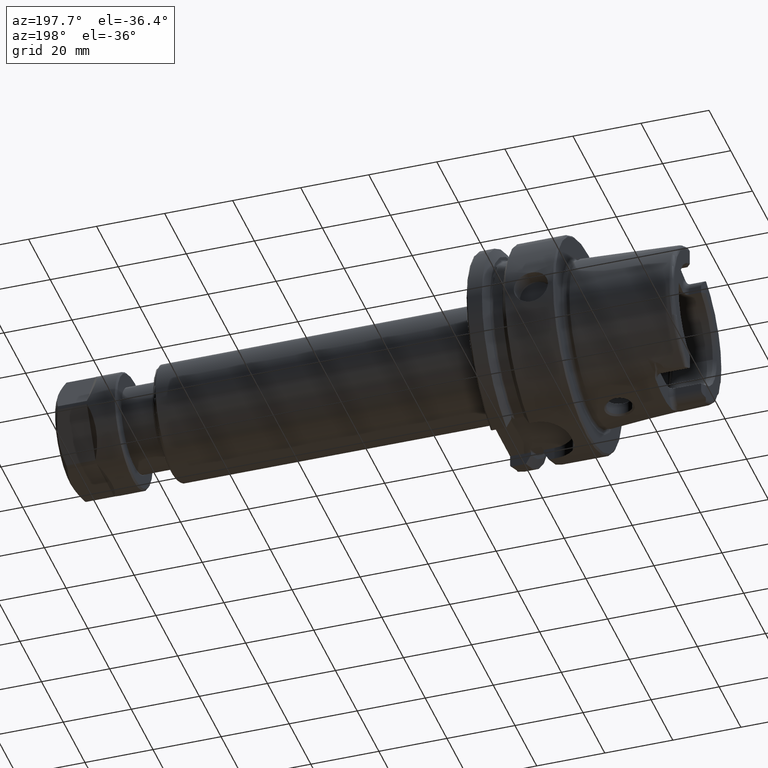
[diagram: clean part render]
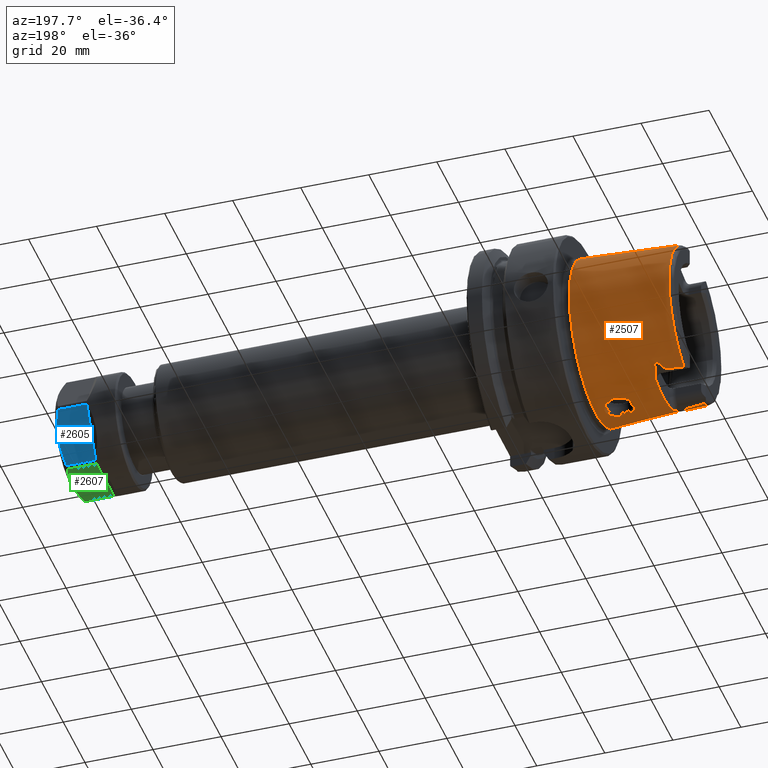
[diagram: same view with three faces highlighted in distinct colors, each labeled with its STEP entity id]
A machine part, auxiliary view with three faces highlighted in distinct colors.
Their STEP definitions:

[orange] entity #2507 — the highlighted conical surface has half-angle 2.868 deg.
#61=(
BOUNDED_CURVE()
B_SPLINE_CURVE(2,(#4235,#4236,#4237),.UNSPECIFIED.,.F.,.F.)
B_SPLINE_CURVE_WITH_KNOTS((3,3),(0.409626932432081,0.704053423593105),
 .UNSPECIFIED.)
CURVE()
GEOMETRIC_REPRESENTATION_ITEM()
RATIONAL_B_SPLINE_CURVE((1.00336468859939,1.00336468859939,1.00162640098087))
REPRESENTATION_ITEM('')
);
#62=(
BOUNDED_CURVE()
B_SPLINE_CURVE(2,(#4302,#4303,#4304),.UNSPECIFIED.,.F.,.F.)
B_SPLINE_CURVE_WITH_KNOTS((3,3),(0.115200441271059,0.409626932432082),
 .UNSPECIFIED.)
CURVE()
GEOMETRIC_REPRESENTATION_ITEM()
RATIONAL_B_SPLINE_CURVE((1.00162640098087,1.00336468859939,1.00336468859939))
REPRESENTATION_ITEM('')
);
#84=B_SPLINE_CURVE_WITH_KNOTS('',3,(#3921,#3922,#3923,#3924,#3925,#3926,
#3927,#3928,#3929,#3930,#3931,#3932,#3933,#3934,#3935,#3936,#3937,#3938),
 .UNSPECIFIED.,.F.,.F.,(4,2,2,2,2,2,2,2,4),(0.937345209538582,1.02529838322405,
1.19618144709472,1.36706451096539,1.42680307053412,1.48654163010284,1.50096970945234,
1.50818374912708,1.51539778880183),.UNSPECIFIED.);
#87=B_SPLINE_CURVE_WITH_KNOTS('',3,(#3989,#3990,#3991,#3992,#3993,#3994,
#3995,#3996,#3997,#3998,#3999,#4000,#4001,#4002,#4003,#4004,#4005,#4006),
 .UNSPECIFIED.,.F.,.F.,(4,2,2,2,2,2,2,2,4),(1.51539778880184,1.52261182847659,
1.52982586815134,1.54425394750083,1.60399250706955,1.66373106663827,1.83461413050895,
2.00549719437962,2.0934503680651),.UNSPECIFIED.);
#89=B_SPLINE_CURVE_WITH_KNOTS('',3,(#4044,#4045,#4046,#4047,#4048,#4049,
#4050,#4051),.UNSPECIFIED.,.F.,.F.,(4,2,2,4),(1.77153596711132,1.83492838643131,
2.00584149209106,2.09371558288111),.UNSPECIFIED.);
#90=B_SPLINE_CURVE_WITH_KNOTS('',3,(#4068,#4069,#4070,#4071,#4072,#4073,
#4074,#4075),.UNSPECIFIED.,.F.,.F.,(4,2,2,4),(0.937604543168422,1.02547863395848,
1.19639173961822,1.25978415893822),.UNSPECIFIED.);
#94=B_SPLINE_CURVE_WITH_KNOTS('',3,(#4207,#4208,#4209,#4210,#4211,#4212,
#4213,#4214,#4215,#4216,#4217,#4218,#4219,#4220,#4221,#4222,#4223,#4224,
#4225,#4226,#4227),.UNSPECIFIED.,.T.,.F.,(4,1,1,1,1,1,1,1,1,1,1,1,1,1,1,
1,1,1,4),(-2.26557970640445,-2.10375258451842,-1.94192546263239,-1.86101190168937,
-1.78009834074636,-1.61827121886032,-1.45644409697429,-1.37553053603127,
-1.29461697508826,-1.18673222716424,-1.07884747924022,-0.970962731316194,
-0.863077983392173,-0.755193235468151,-0.647308487544129,-0.485481365658097,
-0.323654243772065,-0.161827121886032,0.),.UNSPECIFIED.);
#95=B_SPLINE_CURVE_WITH_KNOTS('',3,(#4239,#4240,#4241,#4242,#4243,#4244,
#4245,#4246,#4247,#4248,#4249,#4250,#4251,#4252,#4253,#4254,#4255,#4256),
 .UNSPECIFIED.,.F.,.F.,(4,2,2,2,2,2,2,2,4),(0.,0.0903555875079969,0.135533381261995,
0.180711175015994,0.191679253692351,0.19716329303053,0.202647332368709,
0.208141673454593,0.210684760739668),.UNSPECIFIED.);
#96=B_SPLINE_CURVE_WITH_KNOTS('',3,(#4258,#4259,#4260,#4261,#4262,#4263,
#4264,#4265,#4266,#4267),.UNSPECIFIED.,.F.,.F.,(4,2,2,2,4),(0.278659319230644,
0.333918541832918,0.442805459609059,0.482035165304725,0.500954004489182),
 .UNSPECIFIED.);
#97=B_SPLINE_CURVE_WITH_KNOTS('',3,(#4271,#4272,#4273,#4274,#4275,#4276,
#4277,#4278,#4279,#4280,#4281,#4282),.UNSPECIFIED.,.F.,.F.,(4,2,2,2,2,4),
(0.500954004487676,0.50386398744684,0.528331134037123,0.580812359186529,
0.712749669755937,0.726249722962502),.UNSPECIFIED.);
#98=B_SPLINE_CURVE_WITH_KNOTS('',3,(#4284,#4285,#4286,#4287,#4288,#4289,
#4290,#4291,#4292,#4293,#4294,#4295,#4296,#4297,#4298,#4299,#4300,#4301),
 .UNSPECIFIED.,.F.,.F.,(4,2,2,2,2,2,2,2,4),(0.599581967500703,0.602125054785784,
0.607619395871668,0.613103435209847,0.618587474548027,0.629555553224386,
0.674733346978385,0.719911140732385,0.810266728240384),.UNSPECIFIED.);
#99=B_SPLINE_CURVE_WITH_KNOTS('',3,(#4307,#4308,#4309,#4310,#4311,#4312,
#4313,#4314,#4315,#4316,#4317,#4318,#4319,#4320),.UNSPECIFIED.,.F.,.F.,
(4,2,2,2,2,2,4),(0.612787130114313,0.692070205833102,0.846913877835571,
0.923866042650838,0.97973233720279,1.02631946127952,1.05465853457734),
 .UNSPECIFIED.);
#100=B_SPLINE_CURVE_WITH_KNOTS('',3,(#4323,#4324,#4325,#4326,#4327,#4328,
#4329,#4330,#4331,#4332,#4333,#4334,#4335,#4336),.UNSPECIFIED.,.F.,.F.,
(4,2,2,2,2,2,4),(0.413162960284885,0.443293122422243,0.485069563612126,
0.532728756474865,0.604908335246701,0.737193690325506,0.813919818316776),
 .UNSPECIFIED.);
#101=B_SPLINE_CURVE_WITH_KNOTS('',3,(#4339,#4340,#4341,#4342,#4343,#4344,
#4345,#4346,#4347,#4348,#4349,#4350,#4351,#4352,#4353,#4354,#4355,#4356,
#4357,#4358,#4359),.UNSPECIFIED.,.T.,.F.,(4,1,1,1,1,1,1,1,1,1,1,1,1,1,1,
1,1,1,4),(-2.26557970640445,-2.10375258451842,-1.94192546263239,-1.78009834074636,
-1.61827121886032,-1.45644409697429,-1.37553053603127,-1.29461697508826,
-1.18673222716424,-1.07884747924022,-1.0249051052782,-0.970962731316194,
-0.755193235468151,-0.647308487544129,-0.485481365658097,-0.404567804715081,
-0.323654243772065,-0.161827121886032,0.),.UNSPECIFIED.);
#186=FACE_BOUND('',#464,.T.);
#187=FACE_BOUND('',#465,.T.);
#265=CONICAL_SURFACE('',#2775,23.4974838444284,0.0500583457465973);
#310=FACE_OUTER_BOUND('',#463,.T.);
#463=EDGE_LOOP('',(#1806,#1807,#1808,#1809,#1810,#1811,#1812,#1813,#1814,
#1815,#1816,#1817,#1818,#1819,#1820,#1821,#1822,#1823,#1824,#1825));
#464=EDGE_LOOP('',(#1826));
#465=EDGE_LOOP('',(#1827));
#637=LINE('',#4232,#773);
#773=VECTOR('',#3218,23.4974838444284);
#906=CIRCLE('',#2776,24.2204308617234);
#907=CIRCLE('',#2777,22.7745368271334);
#908=CIRCLE('',#2778,23.2184268537074);
#909=CIRCLE('',#2779,22.7745368271334);
#910=CIRCLE('',#2780,23.0180260521042);
#911=CIRCLE('',#2781,22.7745368271334);
#1065=VERTEX_POINT('',#3918);
#1066=VERTEX_POINT('',#3920);
#1076=VERTEX_POINT('',#3975);
#1077=VERTEX_POINT('',#3988);
#1087=VERTEX_POINT('',#4030);
#1088=VERTEX_POINT('',#4043);
#1094=VERTEX_POINT('',#4065);
#1095=VERTEX_POINT('',#4067);
#1098=VERTEX_POINT('',#4178);
#1101=VERTEX_POINT('',#4229);
#1102=VERTEX_POINT('',#4231);
#1103=VERTEX_POINT('',#4234);
#1104=VERTEX_POINT('',#4238);
#1105=VERTEX_POINT('',#4257);
#1106=VERTEX_POINT('',#4268);
#1107=VERTEX_POINT('',#4270);
#1108=VERTEX_POINT('',#4283);
#1109=VERTEX_POINT('',#4306);
#1110=VERTEX_POINT('',#4321);
#1111=VERTEX_POINT('',#4338);
#1330=EDGE_CURVE('',#1066,#1065,#84,.T.);
#1344=EDGE_CURVE('',#1077,#1076,#87,.T.);
#1357=EDGE_CURVE('',#1088,#1087,#89,.T.);
#1365=EDGE_CURVE('',#1095,#1094,#90,.T.);
#1373=EDGE_CURVE('',#1098,#1098,#94,.T.);
#1374=EDGE_CURVE('',#1101,#1101,#906,.T.);
#1375=EDGE_CURVE('',#1101,#1102,#637,.T.);
#1376=EDGE_CURVE('',#1102,#1066,#907,.T.);
#1377=EDGE_CURVE('',#1065,#1103,#61,.T.);
#1378=EDGE_CURVE('',#1104,#1103,#95,.T.);
#1379=EDGE_CURVE('',#1105,#1104,#96,.T.);
#1380=EDGE_CURVE('',#1105,#1106,#908,.T.);
#1381=EDGE_CURVE('',#1107,#1106,#97,.T.);
#1382=EDGE_CURVE('',#1108,#1107,#98,.T.);
#1383=EDGE_CURVE('',#1108,#1077,#62,.T.);
#1384=EDGE_CURVE('',#1076,#1095,#909,.T.);
#1385=EDGE_CURVE('',#1109,#1094,#99,.T.);
#1386=EDGE_CURVE('',#1109,#1110,#910,.T.);
#1387=EDGE_CURVE('',#1088,#1110,#100,.T.);
#1388=EDGE_CURVE('',#1087,#1102,#911,.T.);
#1389=EDGE_CURVE('',#1111,#1111,#101,.T.);
#1806=ORIENTED_EDGE('',*,*,#1374,.F.);
#1807=ORIENTED_EDGE('',*,*,#1375,.T.);
#1808=ORIENTED_EDGE('',*,*,#1376,.T.);
#1809=ORIENTED_EDGE('',*,*,#1330,.T.);
#1810=ORIENTED_EDGE('',*,*,#1377,.T.);
#1811=ORIENTED_EDGE('',*,*,#1378,.F.);
#1812=ORIENTED_EDGE('',*,*,#1379,.F.);
#1813=ORIENTED_EDGE('',*,*,#1380,.T.);
#1814=ORIENTED_EDGE('',*,*,#1381,.F.);
#1815=ORIENTED_EDGE('',*,*,#1382,.F.);
#1816=ORIENTED_EDGE('',*,*,#1383,.T.);
#1817=ORIENTED_EDGE('',*,*,#1344,.T.);
#1818=ORIENTED_EDGE('',*,*,#1384,.T.);
#1819=ORIENTED_EDGE('',*,*,#1365,.T.);
#1820=ORIENTED_EDGE('',*,*,#1385,.F.);
#1821=ORIENTED_EDGE('',*,*,#1386,.T.);
#1822=ORIENTED_EDGE('',*,*,#1387,.F.);
#1823=ORIENTED_EDGE('',*,*,#1357,.T.);
#1824=ORIENTED_EDGE('',*,*,#1388,.T.);
#1825=ORIENTED_EDGE('',*,*,#1375,.F.);
#1826=ORIENTED_EDGE('',*,*,#1389,.F.);
#1827=ORIENTED_EDGE('',*,*,#1373,.F.);
#2507=ADVANCED_FACE('',(#310,#186,#187),#265,.T.);
#2775=AXIS2_PLACEMENT_3D('',#4228,#3214,#3215);
#2776=AXIS2_PLACEMENT_3D('',#4230,#3216,#3217);
#2777=AXIS2_PLACEMENT_3D('',#4233,#3219,#3220);
#2778=AXIS2_PLACEMENT_3D('',#4269,#3221,#3222);
#2779=AXIS2_PLACEMENT_3D('',#4305,#3223,#3224);
#2780=AXIS2_PLACEMENT_3D('',#4322,#3225,#3226);
#2781=AXIS2_PLACEMENT_3D('',#4337,#3227,#3228);
#3214=DIRECTION('center_axis',(1.,0.,0.));
#3215=DIRECTION('ref_axis',(0.,1.,0.));
#3216=DIRECTION('center_axis',(1.,0.,0.));
#3217=DIRECTION('ref_axis',(0.,0.,-1.));
#3218=DIRECTION('',(-0.998747342623037,0.0500374420151821,6.1278193201414E-18));
#3219=DIRECTION('center_axis',(1.,0.,0.));
#3220=DIRECTION('ref_axis',(0.,0.,-1.));
#3221=DIRECTION('center_axis',(1.,0.,0.));
#3222=DIRECTION('ref_axis',(0.,1.,0.));
#3223=DIRECTION('center_axis',(1.,0.,0.));
#3224=DIRECTION('ref_axis',(0.,0.,-1.));
#3225=DIRECTION('center_axis',(1.,0.,0.));
#3226=DIRECTION('ref_axis',(0.,1.,0.));
#3227=DIRECTION('center_axis',(1.,0.,0.));
#3228=DIRECTION('ref_axis',(0.,0.,-1.));
#3918=CARTESIAN_POINT('',(-25.0978148584663,-10.4556386714692,-20.5570425901345));
#3920=CARTESIAN_POINT('',(-30.8600449304182,-9.1175788960984,-20.8698175067219));
#3921=CARTESIAN_POINT('Ctrl Pts',(-30.8600449304182,-9.11757889609839,-20.8698175067219));
#3922=CARTESIAN_POINT('Ctrl Pts',(-30.5458909643235,-9.15590567779842,-20.8702489912062));
#3923=CARTESIAN_POINT('Ctrl Pts',(-30.2333885582947,-9.19553638844306,-20.8699331931734));
#3924=CARTESIAN_POINT('Ctrl Pts',(-29.3200764392134,-9.31683719872071,-20.8662835753638));
#3925=CARTESIAN_POINT('Ctrl Pts',(-28.7253632733503,-9.40260250516231,-20.8605355436413));
#3926=CARTESIAN_POINT('Ctrl Pts',(-27.5600080230793,-9.59491882494623,-20.8370744460606));
#3927=CARTESIAN_POINT('Ctrl Pts',(-26.9889879780948,-9.69930871486833,-20.8204848534175));
#3928=CARTESIAN_POINT('Ctrl Pts',(-26.243078447761,-9.87995363103469,-20.7763753921414));
#3929=CARTESIAN_POINT('Ctrl Pts',(-26.0321916389,-9.93536599911181,-20.7617058242075));
#3930=CARTESIAN_POINT('Ctrl Pts',(-25.6226314158803,-10.0671936374524,-20.7209199758996));
#3931=CARTESIAN_POINT('Ctrl Pts',(-25.4220827984544,-10.138547720478,-20.6974983203461));
#3932=CARTESIAN_POINT('Ctrl Pts',(-25.2208246412483,-10.2713306216733,-20.6428847988051));
#3933=CARTESIAN_POINT('Ctrl Pts',(-25.1803732229877,-10.3024924958121,-20.6296329719333));
#3934=CARTESIAN_POINT('Ctrl Pts',(-25.1342239230183,-10.3555186194877,-20.6056268137561));
#3935=CARTESIAN_POINT('Ctrl Pts',(-25.1212840412597,-10.3742534446523,-20.5969290505833));
#3936=CARTESIAN_POINT('Ctrl Pts',(-25.10307563401,-10.4135952575897,-20.5780886428205));
#3937=CARTESIAN_POINT('Ctrl Pts',(-25.0978148584663,-10.434204936409,-20.5679441285336));
#3938=CARTESIAN_POINT('Ctrl Pts',(-25.0978148584663,-10.4556386714692,-20.5570425901345));
#3975=CARTESIAN_POINT('',(-30.8600449304182,9.1175788960984,-20.8698175067219));
#3988=CARTESIAN_POINT('',(-25.0978148584663,10.4556386714692,-20.5570425901345));
#3989=CARTESIAN_POINT('Ctrl Pts',(-25.0978148584663,10.4556386714692,-20.5570425901345));
#3990=CARTESIAN_POINT('Ctrl Pts',(-25.0978148584663,10.434204936409,-20.5679441285336));
#3991=CARTESIAN_POINT('Ctrl Pts',(-25.1030756340098,10.4135952575897,-20.5780886428205));
#3992=CARTESIAN_POINT('Ctrl Pts',(-25.1212840412595,10.3742534446523,-20.5969290505833));
#3993=CARTESIAN_POINT('Ctrl Pts',(-25.1342239230183,10.3555186194877,-20.605626813756));
#3994=CARTESIAN_POINT('Ctrl Pts',(-25.1803732229877,10.3024924958122,-20.6296329719333));
#3995=CARTESIAN_POINT('Ctrl Pts',(-25.2208246412482,10.2713306216733,-20.6428847988051));
#3996=CARTESIAN_POINT('Ctrl Pts',(-25.4220827984543,10.138547720478,-20.6974983203461));
#3997=CARTESIAN_POINT('Ctrl Pts',(-25.6226314158802,10.0671936374525,-20.7209199758995));
#3998=CARTESIAN_POINT('Ctrl Pts',(-26.0321916388999,9.93536599911188,-20.7617058242075));
#3999=CARTESIAN_POINT('Ctrl Pts',(-26.2430784477608,9.8799536310347,-20.7763753921414));
#4000=CARTESIAN_POINT('Ctrl Pts',(-26.9889879780946,9.69930871486834,-20.8204848534175));
#4001=CARTESIAN_POINT('Ctrl Pts',(-27.5600080230791,9.59491882494626,-20.8370744460606));
#4002=CARTESIAN_POINT('Ctrl Pts',(-28.7253632733501,9.40260250516234,-20.8605355436413));
#4003=CARTESIAN_POINT('Ctrl Pts',(-29.3200764392133,9.31683719872073,-20.8662835753638));
#4004=CARTESIAN_POINT('Ctrl Pts',(-30.2333885582946,9.19553638844306,-20.8699331931734));
#4005=CARTESIAN_POINT('Ctrl Pts',(-30.5458909643235,9.15590567779843,-20.8702489912062));
#4006=CARTESIAN_POINT('Ctrl Pts',(-30.8600449304182,9.11757889609839,-20.8698175067219));
#4030=CARTESIAN_POINT('',(-30.8600449304182,-9.1175788960984,20.8698175067219));
#4043=CARTESIAN_POINT('',(-27.5000000000755,-9.61067758640857,20.8329168403914));
#4044=CARTESIAN_POINT('Ctrl Pts',(-27.500000000078,-9.61067758642201,20.8329168403892));
#4045=CARTESIAN_POINT('Ctrl Pts',(-27.7125737548958,-9.57148784129481,20.8392673030342));
#4046=CARTESIAN_POINT('Ctrl Pts',(-27.9270578144772,-9.53434241390281,20.8444654011212));
#4047=CARTESIAN_POINT('Ctrl Pts',(-28.7259960474271,-9.40250589525003,20.8605443506117));
#4048=CARTESIAN_POINT('Ctrl Pts',(-29.3208153495341,-9.3167323629879,20.8662898636256));
#4049=CARTESIAN_POINT('Ctrl Pts',(-30.2339565561897,-9.19546438357122,20.8699337533607));
#4050=CARTESIAN_POINT('Ctrl Pts',(-30.5461763429502,-9.15587086160794,20.8702485992441));
#4051=CARTESIAN_POINT('Ctrl Pts',(-30.8600449304182,-9.11757889609839,20.8698175067219));
#4065=CARTESIAN_POINT('',(-27.5000000000755,9.61067758640857,20.8329168403914));
#4067=CARTESIAN_POINT('',(-30.8600449304182,9.1175788960984,20.8698175067219));
#4068=CARTESIAN_POINT('Ctrl Pts',(-30.8600449304182,9.11757889609839,20.8698175067219));
#4069=CARTESIAN_POINT('Ctrl Pts',(-30.5461763429502,9.15587086160794,20.8702485992441));
#4070=CARTESIAN_POINT('Ctrl Pts',(-30.2339565561898,9.1954643835712,20.8699337533607));
#4071=CARTESIAN_POINT('Ctrl Pts',(-29.3208153495341,9.31673236298789,20.8662898636256));
#4072=CARTESIAN_POINT('Ctrl Pts',(-28.7259960474271,9.40250589525004,20.8605443506117));
#4073=CARTESIAN_POINT('Ctrl Pts',(-27.9270578144772,9.53434241390281,20.8444654011213));
#4074=CARTESIAN_POINT('Ctrl Pts',(-27.7125737548958,9.57148784129481,20.8392673030342));
#4075=CARTESIAN_POINT('Ctrl Pts',(-27.500000000078,9.61067758642201,20.8329168403892));
#4178=CARTESIAN_POINT('',(-9.02925407423461,4.24282684078987,-23.4881339907642));
#4207=CARTESIAN_POINT('Ctrl Pts',(-9.02925407423461,4.24282684078987,-23.4881339907642));
#4208=CARTESIAN_POINT('Ctrl Pts',(-8.41794937729802,4.24763962021184,-23.5183867686952));
#4209=CARTESIAN_POINT('Ctrl Pts',(-7.09719062335626,3.96214027152736,-23.6400391343347));
#4210=CARTESIAN_POINT('Ctrl Pts',(-5.85872384144614,2.97350456469995,-23.8514262488192));
#4211=CARTESIAN_POINT('Ctrl Pts',(-5.16063731756733,1.91003066646729,-23.9915936511341));
#4212=CARTESIAN_POINT('Ctrl Pts',(-4.71967908413408,0.667233683255142,-24.0892210412975));
#4213=CARTESIAN_POINT('Ctrl Pts',(-4.69487671176925,-0.887140287368457,
-24.0946920123011));
#4214=CARTESIAN_POINT('Ctrl Pts',(-5.41575081787389,-2.43754371827964,-23.9347651451498));
#4215=CARTESIAN_POINT('Ctrl Pts',(-6.27200380070453,-3.29839456985501,-23.7808774616528));
#4216=CARTESIAN_POINT('Ctrl Pts',(-7.16157899956841,-3.8911177348338,-23.6460473005722));
#4217=CARTESIAN_POINT('Ctrl Pts',(-8.32145673061719,-4.25090987526345,-23.5228217546797));
#4218=CARTESIAN_POINT('Ctrl Pts',(-9.55257943298201,-4.26858049401254,-23.456823819944));
#4219=CARTESIAN_POINT('Ctrl Pts',(-10.8313666496774,-3.90479981259957,-23.4573341216261));
#4220=CARTESIAN_POINT('Ctrl Pts',(-11.8961422246607,-3.1841113544275,-23.5146565929276));
#4221=CARTESIAN_POINT('Ctrl Pts',(-12.7003698798572,-2.21954630167764,-23.5891273633448));
#4222=CARTESIAN_POINT('Ctrl Pts',(-13.2855020445789,-0.774775065590821,
-23.6608303251767));
#4223=CARTESIAN_POINT('Ctrl Pts',(-13.2993151465013,0.893979362185892,-23.6627026291545));
#4224=CARTESIAN_POINT('Ctrl Pts',(-12.4532300975689,2.72994365265342,-23.5583564408809));
#4225=CARTESIAN_POINT('Ctrl Pts',(-10.9641321027099,3.91707089294868,-23.4490088113463));
#4226=CARTESIAN_POINT('Ctrl Pts',(-9.64055877117117,4.23801406136791,-23.4578812128331));
#4227=CARTESIAN_POINT('Ctrl Pts',(-9.02925407423461,4.24282684078988,-23.4881339907642));
#4228=CARTESIAN_POINT('Origin',(-16.4300224652091,0.,0.));
#4229=CARTESIAN_POINT('',(-2.,-24.2204308617234,-2.96614731287794E-15));
#4230=CARTESIAN_POINT('Origin',(-2.,0.,0.));
#4231=CARTESIAN_POINT('',(-30.8600449304182,-22.7745368271334,-2.78907636274124E-15));
#4232=CARTESIAN_POINT('',(-16.4300224652091,-23.4974838444284,-2.87761183780959E-15));
#4233=CARTESIAN_POINT('Origin',(-30.8600449304182,0.,0.));
#4234=CARTESIAN_POINT('',(-23.5,-12.1698923613067,-19.6851459107563));
#4235=CARTESIAN_POINT('Ctrl Pts',(-25.0978148584663,-10.4556386714692,-20.5570425901345));
#4236=CARTESIAN_POINT('Ctrl Pts',(-25.0978148584663,-11.3112805797553,-20.1218495128239));
#4237=CARTESIAN_POINT('Ctrl Pts',(-23.5,-12.1698923613067,-19.6851459107563));
#4238=CARTESIAN_POINT('',(-22.9409864229987,-10.5046262057925,-20.6533579718259));
#4239=CARTESIAN_POINT('Ctrl Pts',(-22.9409864229987,-10.5046262057925,-20.6533579718259));
#4240=CARTESIAN_POINT('Ctrl Pts',(-22.9409864229987,-10.7730829666602,-20.516816595398));
#4241=CARTESIAN_POINT('Ctrl Pts',(-22.9574206817668,-11.0623666606509,-20.3616089931375));
#4242=CARTESIAN_POINT('Ctrl Pts',(-23.0214299513488,-11.4761009466796,-20.1257517714531));
#4243=CARTESIAN_POINT('Ctrl Pts',(-23.0491283200772,-11.6099871059181,-20.0471312410654));
#4244=CARTESIAN_POINT('Ctrl Pts',(-23.1253497318037,-11.8635092488451,-19.8937049027563));
#4245=CARTESIAN_POINT('Ctrl Pts',(-23.1681553584466,-11.9845149642791,-19.8183788237048));
#4246=CARTESIAN_POINT('Ctrl Pts',(-23.2720205567489,-12.1145084587468,-19.7327054731899));
#4247=CARTESIAN_POINT('Ctrl Pts',(-23.2970638659452,-12.1405120406692,-19.7152346163683));
#4248=CARTESIAN_POINT('Ctrl Pts',(-23.340824213029,-12.1694983830269,-19.6947680043585));
#4249=CARTESIAN_POINT('Ctrl Pts',(-23.3564336502031,-12.1775072041959,-19.6888951705931));
#4250=CARTESIAN_POINT('Ctrl Pts',(-23.3894992563298,-12.1884299822762,-19.6801867490419));
#4251=CARTESIAN_POINT('Ctrl Pts',(-23.4069516148396,-12.191352087042,-19.6773469156348));
#4252=CARTESIAN_POINT('Ctrl Pts',(-23.4435003757557,-12.1903876993059,-19.675790353909));
#4253=CARTESIAN_POINT('Ctrl Pts',(-23.4609883159786,-12.1865341044229,-19.6771480362853));
#4254=CARTESIAN_POINT('Ctrl Pts',(-23.4852443648865,-12.1772664781571,-19.6814547071094));
#4255=CARTESIAN_POINT('Ctrl Pts',(-23.4927247382132,-12.1738018414638,-19.6831574869965));
#4256=CARTESIAN_POINT('Ctrl Pts',(-23.5,-12.1698923613067,-19.6851459107563));
#4257=CARTESIAN_POINT('',(-22.,-7.4031250016059,-22.0065691504051));
#4258=CARTESIAN_POINT('Ctrl Pts',(-22.,-7.4031250016064,-22.0065691504049));
#4259=CARTESIAN_POINT('Ctrl Pts',(-22.,-7.64154328791244,-21.9263639914758));
#4260=CARTESIAN_POINT('Ctrl Pts',(-22.0282316966018,-7.93106690411137,-21.8234540350138));
#4261=CARTESIAN_POINT('Ctrl Pts',(-22.2899989017396,-8.94727995671646,-21.421774019244));
#4262=CARTESIAN_POINT('Ctrl Pts',(-22.60775210997,-9.49253651928731,-21.1610368486918));
#4263=CARTESIAN_POINT('Ctrl Pts',(-22.8524785496019,-10.0580168739411,-20.8800894739587));
#4264=CARTESIAN_POINT('Ctrl Pts',(-22.8997008986804,-10.1907353571143,-20.8128334005565));
#4265=CARTESIAN_POINT('Ctrl Pts',(-22.9350020039233,-10.381785274935,-20.7158310407179));
#4266=CARTESIAN_POINT('Ctrl Pts',(-22.9409864229987,-10.4428555441716,-20.6847755123391));
#4267=CARTESIAN_POINT('Ctrl Pts',(-22.9409864229987,-10.5046262057925,-20.6533579718259));
#4268=CARTESIAN_POINT('',(-22.,7.4031250016059,-22.0065691504051));
#4269=CARTESIAN_POINT('Origin',(-22.,0.,0.));
#4270=CARTESIAN_POINT('',(-22.9409864229987,10.5046262057925,-20.6533579718259));
#4271=CARTESIAN_POINT('Ctrl Pts',(-22.9409864229987,10.5046262057925,-20.6533579718259));
#4272=CARTESIAN_POINT('Ctrl Pts',(-22.9409864229987,10.4951250111927,-20.6581904304467));
#4273=CARTESIAN_POINT('Ctrl Pts',(-22.9408450644905,10.4856070684351,-20.6630311043921));
#4274=CARTESIAN_POINT('Ctrl Pts',(-22.9381719760295,10.3958439048842,-20.7086800932502));
#4275=CARTESIAN_POINT('Ctrl Pts',(-22.9258072553349,10.3185989460598,-20.747952822378));
#4276=CARTESIAN_POINT('Ctrl Pts',(-22.8649803787077,10.0769327863764,-20.8704196245159));
#4277=CARTESIAN_POINT('Ctrl Pts',(-22.7887679321626,9.90306802919886,-20.9581178536208));
#4278=CARTESIAN_POINT('Ctrl Pts',(-22.4484945404157,9.18505116717875,-21.3075925571443));
#4279=CARTESIAN_POINT('Ctrl Pts',(-22.0746753976002,8.47121172659649,-21.631485700585));
#4280=CARTESIAN_POINT('Ctrl Pts',(-22.0031617045067,7.56447021316982,-21.9516456669287));
#4281=CARTESIAN_POINT('Ctrl Pts',(-22.,7.48262387019776,-21.9798253150689));
#4282=CARTESIAN_POINT('Ctrl Pts',(-22.,7.40312500160694,-22.0065691504047));
#4283=CARTESIAN_POINT('',(-23.5,12.1698923613067,-19.6851459107563));
#4284=CARTESIAN_POINT('Ctrl Pts',(-23.5,12.1698923613067,-19.6851459107563));
#4285=CARTESIAN_POINT('Ctrl Pts',(-23.4927247382132,12.1738018414639,-19.6831574869965));
#4286=CARTESIAN_POINT('Ctrl Pts',(-23.4852443648865,12.1772664781571,-19.6814547071094));
#4287=CARTESIAN_POINT('Ctrl Pts',(-23.4609883159786,12.1865341044229,-19.6771480362853));
#4288=CARTESIAN_POINT('Ctrl Pts',(-23.4435003757557,12.190387699306,-19.6757903539089));
#4289=CARTESIAN_POINT('Ctrl Pts',(-23.4069516148396,12.1913520870421,-19.6773469156348));
#4290=CARTESIAN_POINT('Ctrl Pts',(-23.3894992563298,12.1884299822762,-19.6801867490419));
#4291=CARTESIAN_POINT('Ctrl Pts',(-23.3564336502031,12.1775072041959,-19.688895170593));
#4292=CARTESIAN_POINT('Ctrl Pts',(-23.340824213029,12.169498383027,-19.6947680043585));
#4293=CARTESIAN_POINT('Ctrl Pts',(-23.2970638659452,12.1405120406693,-19.7152346163683));
#4294=CARTESIAN_POINT('Ctrl Pts',(-23.2720205567489,12.1145084587468,-19.7327054731899));
#4295=CARTESIAN_POINT('Ctrl Pts',(-23.1681553584466,11.9845149642791,-19.8183788237047));
#4296=CARTESIAN_POINT('Ctrl Pts',(-23.1253497318037,11.8635092488451,-19.8937049027563));
#4297=CARTESIAN_POINT('Ctrl Pts',(-23.0491283200772,11.6099871059182,-20.0471312410654));
#4298=CARTESIAN_POINT('Ctrl Pts',(-23.0214299513488,11.4761009466796,-20.1257517714531));
#4299=CARTESIAN_POINT('Ctrl Pts',(-22.9574206817668,11.0623666606509,-20.3616089931375));
#4300=CARTESIAN_POINT('Ctrl Pts',(-22.9409864229987,10.7730829666602,-20.516816595398));
#4301=CARTESIAN_POINT('Ctrl Pts',(-22.9409864229987,10.5046262057925,-20.6533579718259));
#4302=CARTESIAN_POINT('Ctrl Pts',(-23.5,12.1698923613067,-19.6851459107563));
#4303=CARTESIAN_POINT('Ctrl Pts',(-25.0978148584663,11.3112805797553,-20.1218495128239));
#4304=CARTESIAN_POINT('Ctrl Pts',(-25.0978148584662,10.4556386714692,-20.5570425901345));
#4305=CARTESIAN_POINT('Origin',(-30.8600449304182,0.,0.));
#4306=CARTESIAN_POINT('',(-26.,7.14127219004964,21.8822246319466));
#4307=CARTESIAN_POINT('Ctrl Pts',(-26.,7.14127219004961,21.8822246319466));
#4308=CARTESIAN_POINT('Ctrl Pts',(-26.,7.38735946023371,21.801913959314));
#4309=CARTESIAN_POINT('Ctrl Pts',(-26.033972788753,7.63482296419265,21.7146832850108));
#4310=CARTESIAN_POINT('Ctrl Pts',(-26.2194423861809,8.34889404999889,21.4446815988103));
#4311=CARTESIAN_POINT('Ctrl Pts',(-26.4428793547878,8.75952114583654,21.2645357982171));
#4312=CARTESIAN_POINT('Ctrl Pts',(-26.7590254549197,9.19092879202869,21.0625769757814));
#4313=CARTESIAN_POINT('Ctrl Pts',(-26.8729708291721,9.32104212441475,20.9987774802421));
#4314=CARTESIAN_POINT('Ctrl Pts',(-27.0716948778125,9.49280512119961,20.9106159819251));
#4315=CARTESIAN_POINT('Ctrl Pts',(-27.144806553738,9.53932652154805,20.8852782118319));
#4316=CARTESIAN_POINT('Ctrl Pts',(-27.2637975599135,9.59417850538166,20.8535668796639));
#4317=CARTESIAN_POINT('Ctrl Pts',(-27.322222387454,9.61219549867679,20.8420263003947));
#4318=CARTESIAN_POINT('Ctrl Pts',(-27.4236635149584,9.61988157707407,20.8328813745288));
#4319=CARTESIAN_POINT('Ctrl Pts',(-27.4617925463603,9.61772144927266,20.8317754247499));
#4320=CARTESIAN_POINT('Ctrl Pts',(-27.5000000000779,9.61067758642203,20.8329168403892));
#4321=CARTESIAN_POINT('',(-26.,-7.14127219004964,21.8822246319466));
#4322=CARTESIAN_POINT('Origin',(-26.,0.,0.));
#4323=CARTESIAN_POINT('Ctrl Pts',(-27.500000000078,-9.610677586422,20.8329168403892));
#4324=CARTESIAN_POINT('Ctrl Pts',(-27.4634308025005,-9.61741942308555,20.8318243662782));
#4325=CARTESIAN_POINT('Ctrl Pts',(-27.4260889661871,-9.61985292316152,20.8327607188551));
#4326=CARTESIAN_POINT('Ctrl Pts',(-27.3343377981765,-9.61339298685805,20.8408051456548));
#4327=CARTESIAN_POINT('Ctrl Pts',(-27.2828394544385,-9.59996378018902,20.8498476845684));
#4328=CARTESIAN_POINT('Ctrl Pts',(-27.1765640574038,-9.55615724159004,20.8758218933212));
#4329=CARTESIAN_POINT('Ctrl Pts',(-27.111584300389,-9.51976030908576,20.8961199655304));
#4330=CARTESIAN_POINT('Ctrl Pts',(-26.9153060284285,-9.36478934458731,20.9769473005223));
#4331=CARTESIAN_POINT('Ctrl Pts',(-26.7955937204007,-9.23492374831594,21.0413520243865));
#4332=CARTESIAN_POINT('Ctrl Pts',(-26.4809422997755,-8.82026009617074,21.2370375105362));
#4333=CARTESIAN_POINT('Ctrl Pts',(-26.2539798154924,-8.42841535117176,21.4117405279022));
#4334=CARTESIAN_POINT('Ctrl Pts',(-26.0395031937781,-7.68065048502185,21.6986739773255));
#4335=CARTESIAN_POINT('Ctrl Pts',(-26.,-7.40668123592282,21.7956082905937));
#4336=CARTESIAN_POINT('Ctrl Pts',(-26.,-7.14127219004964,21.8822246319466));
#4337=CARTESIAN_POINT('Origin',(-30.8600449304182,0.,0.));
#4338=CARTESIAN_POINT('',(-9.0292540742346,4.24282684078987,23.4881339907642));
#4339=CARTESIAN_POINT('Ctrl Pts',(-9.0292540742346,4.24282684078987,23.4881339907642));
#4340=CARTESIAN_POINT('Ctrl Pts',(-9.64055877117117,4.23801406136791,23.4578812128331));
#4341=CARTESIAN_POINT('Ctrl Pts',(-10.9638730702336,3.91798236438986,23.4489970857899));
#4342=CARTESIAN_POINT('Ctrl Pts',(-12.4525958595704,2.72863690378587,23.5583136537412));
#4343=CARTESIAN_POINT('Ctrl Pts',(-13.2979904921632,0.897590812051159,23.6626376623402));
#4344=CARTESIAN_POINT('Ctrl Pts',(-13.2815658701657,-0.98999302529681,23.6604426532769));
#4345=CARTESIAN_POINT('Ctrl Pts',(-12.5283174417603,-2.51201387505666,23.5683654759453));
#4346=CARTESIAN_POINT('Ctrl Pts',(-11.6444040622836,-3.36174194412279,23.50003047831));
#4347=CARTESIAN_POINT('Ctrl Pts',(-10.7212741834396,-3.93934579023148,23.4568699868312));
#4348=CARTESIAN_POINT('Ctrl Pts',(-9.5509992773888,-4.26722573729756,23.4569375771407));
#4349=CARTESIAN_POINT('Ctrl Pts',(-8.52867241778628,-4.25003876713782,23.5122547979276));
#4350=CARTESIAN_POINT('Ctrl Pts',(-7.68780586799832,-4.05338928451488,23.5899164151454));
#4351=CARTESIAN_POINT('Ctrl Pts',(-6.48553931138608,-3.55436322843895,23.7337139580667));
#4352=CARTESIAN_POINT('Ctrl Pts',(-5.4130820429913,-2.55345835746536,23.93595268899));
#4353=CARTESIAN_POINT('Ctrl Pts',(-4.69884914086794,-0.680968659887892,
24.0937023327386));
#4354=CARTESIAN_POINT('Ctrl Pts',(-4.71937382006398,0.664900361610849,24.08935727819));
#4355=CARTESIAN_POINT('Ctrl Pts',(-5.16062521092841,1.90899044718831,23.9916071295055));
#4356=CARTESIAN_POINT('Ctrl Pts',(-5.8586063866709,2.97237256239872,23.8514805565406));
#4357=CARTESIAN_POINT('Ctrl Pts',(-7.09720951544069,3.96193589367342,23.6400338901471));
#4358=CARTESIAN_POINT('Ctrl Pts',(-8.41794937729801,4.24763962021184,23.5183867686952));
#4359=CARTESIAN_POINT('Ctrl Pts',(-9.0292540742346,4.24282684078988,23.4881339907642));

[blue] entity #2605 — the highlighted planar face has unit normal (0, -0.866, 0.5).
#78=(
BOUNDED_CURVE()
B_SPLINE_CURVE(2,(#5355,#5356,#5357),.UNSPECIFIED.,.F.,.F.)
B_SPLINE_CURVE_WITH_KNOTS((3,3),(1.89977904823299,4.47851568551581),
 .UNSPECIFIED.)
CURVE()
GEOMETRIC_REPRESENTATION_ITEM()
RATIONAL_B_SPLINE_CURVE((1.51788044142248,1.72026450027882,1.51788044142245))
REPRESENTATION_ITEM('')
);
#247=PLANE('',#2983);
#408=FACE_OUTER_BOUND('',#569,.T.);
#569=EDGE_LOOP('',(#2365,#2366,#2367,#2368));
#716=LINE('',#5333,#852);
#717=LINE('',#5337,#853);
#722=LINE('',#5374,#858);
#852=VECTOR('',#3693,8.567949192431);
#853=VECTOR('',#3696,8.567949192431);
#858=VECTOR('',#3717,15.9999999999995);
#1255=VERTEX_POINT('',#5330);
#1256=VERTEX_POINT('',#5332);
#1257=VERTEX_POINT('',#5334);
#1258=VERTEX_POINT('',#5336);
#1621=EDGE_CURVE('',#1256,#1255,#716,.T.);
#1623=EDGE_CURVE('',#1257,#1258,#717,.T.);
#1630=EDGE_CURVE('',#1255,#1258,#78,.T.);
#1637=EDGE_CURVE('',#1256,#1257,#722,.T.);
#2365=ORIENTED_EDGE('',*,*,#1637,.F.);
#2366=ORIENTED_EDGE('',*,*,#1621,.T.);
#2367=ORIENTED_EDGE('',*,*,#1630,.T.);
#2368=ORIENTED_EDGE('',*,*,#1623,.F.);
#2605=ADVANCED_FACE('',(#408),#247,.F.);
#2983=AXIS2_PLACEMENT_3D('',#5373,#3715,#3716);
#3693=DIRECTION('',(1.,0.,0.));
#3696=DIRECTION('',(1.,0.,0.));
#3715=DIRECTION('center_axis',(0.,-0.866025403784429,0.500000000000017));
#3716=DIRECTION('ref_axis',(0.,-0.500000000000017,-0.866025403784429));
#3717=DIRECTION('',(0.,-0.500000000000017,-0.866025403784429));
#5330=CARTESIAN_POINT('',(7.767949192431,16.99038105677,-0.5717967697245));
#5332=CARTESIAN_POINT('',(-0.8,16.99038105677,-0.5717967697245));
#5333=CARTESIAN_POINT('',(-0.8,16.99038105677,-0.5717967697245));
#5334=CARTESIAN_POINT('',(-0.8,8.990381056767,-14.42820323028));
#5336=CARTESIAN_POINT('',(7.767949192431,8.990381056767,-14.42820323028));
#5337=CARTESIAN_POINT('',(-0.8,8.990381056767,-14.42820323028));
#5355=CARTESIAN_POINT('Ctrl Pts',(7.76794919242789,16.9903810567699,-0.571796769725043));
#5356=CARTESIAN_POINT('Ctrl Pts',(9.94150314702463,12.9903810567687,-7.50000000000218));
#5357=CARTESIAN_POINT('Ctrl Pts',(7.76794919242752,8.99038105676748,-14.4282032302796));
#5373=CARTESIAN_POINT('Origin',(9.5,17.99038105677,1.160254037844));
#5374=CARTESIAN_POINT('',(-0.8,16.99038105677,-0.5717967697245));

[green] entity #2607 — the highlighted planar face has unit normal (-0, -0, 1).
#77=(
BOUNDED_CURVE()
B_SPLINE_CURVE(2,(#5352,#5353,#5354),.UNSPECIFIED.,.F.,.F.)
B_SPLINE_CURVE_WITH_KNOTS((3,3),(1.89977904823324,4.47851568551576),
 .UNSPECIFIED.)
CURVE()
GEOMETRIC_REPRESENTATION_ITEM()
RATIONAL_B_SPLINE_CURVE((1.51788044142269,1.72026450027904,1.51788044142269))
REPRESENTATION_ITEM('')
);
#249=PLANE('',#2985);
#410=FACE_OUTER_BOUND('',#571,.T.);
#571=EDGE_LOOP('',(#2371,#2372,#2373,#2374));
#706=LINE('',#5294,#842);
#718=LINE('',#5340,#854);
#723=LINE('',#5377,#859);
#842=VECTOR('',#3663,8.567949192431);
#854=VECTOR('',#3699,8.567949192431);
#859=VECTOR('',#3722,16.);
#1235=VERTEX_POINT('',#5290);
#1236=VERTEX_POINT('',#5291);
#1237=VERTEX_POINT('',#5293);
#1259=VERTEX_POINT('',#5338);
#1601=EDGE_CURVE('',#1235,#1237,#706,.T.);
#1625=EDGE_CURVE('',#1236,#1259,#718,.T.);
#1629=EDGE_CURVE('',#1259,#1237,#77,.T.);
#1638=EDGE_CURVE('',#1236,#1235,#723,.T.);
#2371=ORIENTED_EDGE('',*,*,#1638,.F.);
#2372=ORIENTED_EDGE('',*,*,#1625,.T.);
#2373=ORIENTED_EDGE('',*,*,#1629,.T.);
#2374=ORIENTED_EDGE('',*,*,#1601,.F.);
#2607=ADVANCED_FACE('',(#410),#249,.F.);
#2985=AXIS2_PLACEMENT_3D('',#5376,#3720,#3721);
#3663=DIRECTION('',(1.,0.,0.));
#3699=DIRECTION('',(1.,0.,0.));
#3720=DIRECTION('center_axis',(0.,0.,1.));
#3721=DIRECTION('ref_axis',(0.,-1.,0.));
#3722=DIRECTION('',(0.,-1.,0.));
#5290=CARTESIAN_POINT('',(-0.8,-8.,-15.));
#5291=CARTESIAN_POINT('',(-0.8,8.,-15.));
#5293=CARTESIAN_POINT('',(7.767949192431,-8.,-15.));
#5294=CARTESIAN_POINT('',(-0.8,-8.,-15.));
#5338=CARTESIAN_POINT('',(7.767949192431,8.,-15.));
#5340=CARTESIAN_POINT('',(-0.8,8.,-15.));
#5352=CARTESIAN_POINT('Ctrl Pts',(7.76794919242979,7.99999999999999,-15.));
#5353=CARTESIAN_POINT('Ctrl Pts',(9.94150314702602,8.88178419700125E-15,
-15.));
#5354=CARTESIAN_POINT('Ctrl Pts',(7.7679491924298,-7.99999999999997,-15.));
#5376=CARTESIAN_POINT('Origin',(9.5,10.,-15.));
#5377=CARTESIAN_POINT('',(-0.8,8.,-15.));